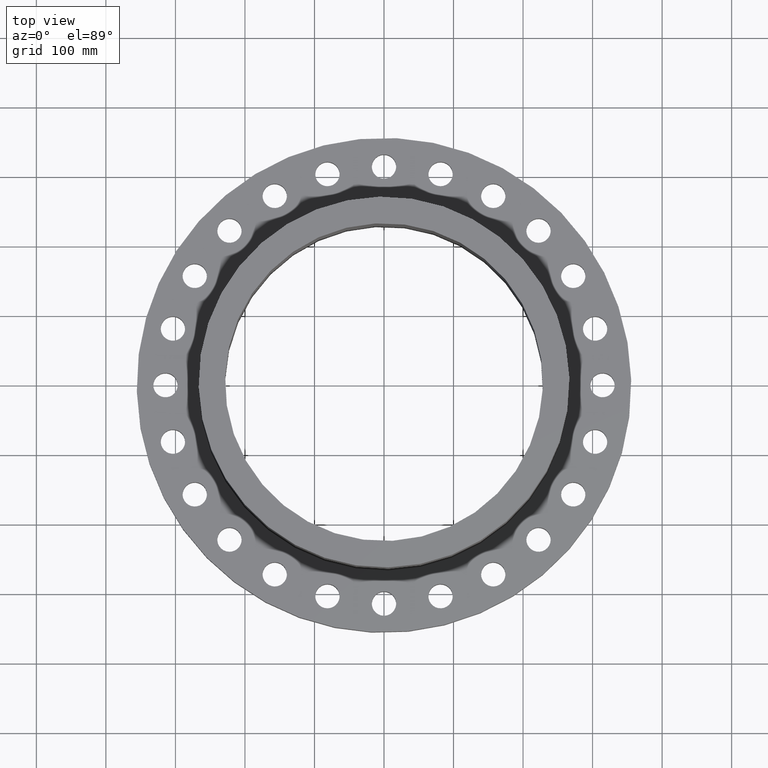
[diagram: clean part render]
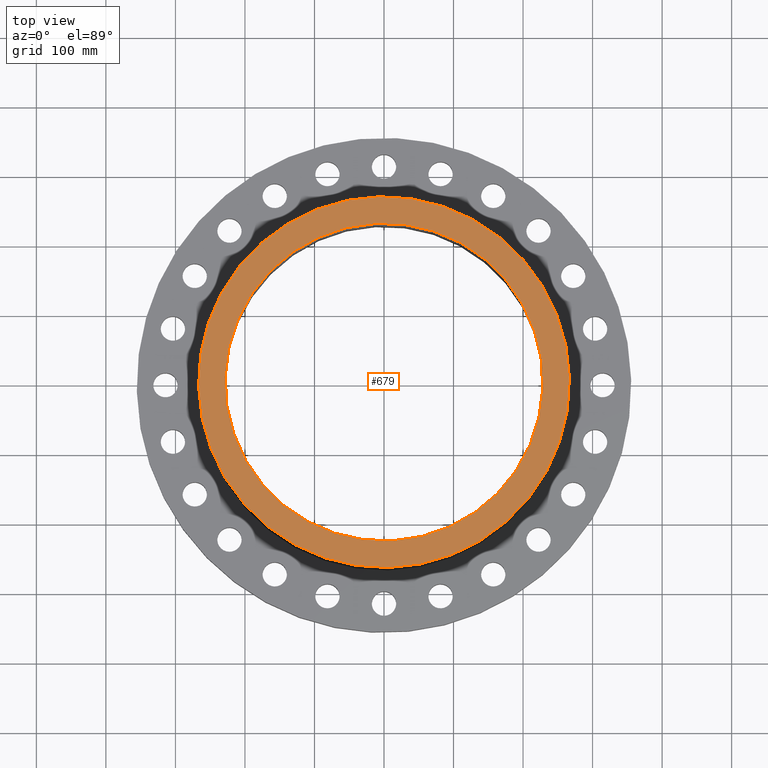
[diagram: same view with one face highlighted and labeled with its STEP entity id]
A machine part, top view. The second image highlights one B-rep face of the part: STEP entity #679.
In plain terms, the highlighted planar face has unit normal (0, 0, -1).
Its self-contained STEP definition (entity closure, byte-faithful):
#618=AXIS2_PLACEMENT_3D('Circle Axis2P3D',#616,#617,$) ;
#642=AXIS2_PLACEMENT_3D('Circle Axis2P3D',#640,#641,$) ;
#655=AXIS2_PLACEMENT_3D('Plane Axis2P3D',#652,#653,#654) ;
#663=AXIS2_PLACEMENT_3D('Circle Axis2P3D',#661,#662,$) ;
#672=AXIS2_PLACEMENT_3D('Circle Axis2P3D',#670,#671,$) ;
#613=CARTESIAN_POINT('Vertex',(5.03396815536,9.21461689989,11.9375)) ;
#616=CARTESIAN_POINT('Axis2P3D Location',(0.,0.,11.9375)) ;
#620=CARTESIAN_POINT('Vertex',(-5.03396815536,-9.21461689989,11.9375)) ;
#640=CARTESIAN_POINT('Axis2P3D Location',(0.,0.,11.9375)) ;
#652=CARTESIAN_POINT('Axis2P3D Location',(0.,10.5,11.9375)) ;
#661=CARTESIAN_POINT('Axis2P3D Location',(0.,0.,11.9375)) ;
#665=CARTESIAN_POINT('Vertex',(-4.31482984746,-7.89824305704,11.9375)) ;
#667=CARTESIAN_POINT('Vertex',(4.31482984746,7.89824305704,11.9375)) ;
#670=CARTESIAN_POINT('Axis2P3D Location',(0.,0.,11.9375)) ;
#617=DIRECTION('Axis2P3D Direction',(0.,0.,-0.0393700787402)) ;
#641=DIRECTION('Axis2P3D Direction',(0.,0.,-0.0393700787402)) ;
#653=DIRECTION('Axis2P3D Direction',(0.,0.,-0.0393700787402)) ;
#654=DIRECTION('Axis2P3D XDirection',(0.0393700787402,0.,0.)) ;
#662=DIRECTION('Axis2P3D Direction',(0.,0.,-0.0393700787402)) ;
#671=DIRECTION('Axis2P3D Direction',(0.,0.,-0.0393700787402)) ;
#658=ORIENTED_EDGE('',*,*,#622,.F.) ;
#659=ORIENTED_EDGE('',*,*,#644,.F.) ;
#676=ORIENTED_EDGE('',*,*,#669,.T.) ;
#677=ORIENTED_EDGE('',*,*,#674,.T.) ;
#678=FACE_BOUND('',#675,.T.) ;
#679=ADVANCED_FACE('PartBody',(#660,#678),#656,.F.) ;
#619=CIRCLE('generated circle',#618,10.5) ;
#643=CIRCLE('generated circle',#642,10.5) ;
#664=CIRCLE('generated circle',#663,9.00000000004) ;
#673=CIRCLE('generated circle',#672,9.00000000004) ;
#622=EDGE_CURVE('',#614,#621,#619,.T.) ;
#644=EDGE_CURVE('',#621,#614,#643,.T.) ;
#669=EDGE_CURVE('',#666,#668,#664,.T.) ;
#674=EDGE_CURVE('',#668,#666,#673,.T.) ;
#657=EDGE_LOOP('',(#658,#659)) ;
#675=EDGE_LOOP('',(#676,#677)) ;
#660=FACE_OUTER_BOUND('',#657,.T.) ;
#656=PLANE('',#655) ;
#614=VERTEX_POINT('',#613) ;
#621=VERTEX_POINT('',#620) ;
#666=VERTEX_POINT('',#665) ;
#668=VERTEX_POINT('',#667) ;